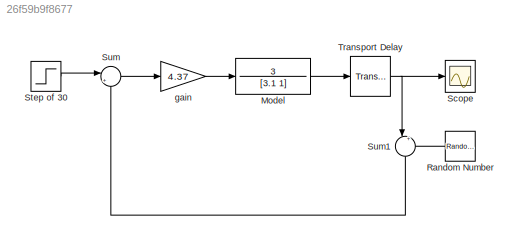
MODEL slx_26f59b9f8677
KIND model
CONFIG AbsTol = auto
CONFIG EnableMultiTasking = off
CONFIG FixedStep = auto
CONFIG MaxStep = auto
CONFIG MinStep = auto
CONFIG RelTol = 1e-3
CONFIG SampleTimeConstraint = Unconstrained
CONFIG SolverName = VariableStepAuto
CONFIG StartTime = 0.0
CONFIG StopTime = 10
BLOCK [TransferFcn] Model
  Denominator = [3.1 1]
  Numerator = 3
BLOCK [RandomNumber] Random Number
  NameLocation = top
  SampleTime = 0
  Seed = 61233
  Variance = .5
BLOCK [Scope] Scope
  Floating = off
  NumInputPorts = 1
  ScopeSpecificationString = Simulink.scopes.TimeScopeBlockCfg('CurrentConfiguration', extmgr.ConfigurationSet(extmgr.Configuration('Core','General UI',true),extmgr.Configuration('Core','Source UI',true),extmgr.Configuration('Sources','WiredSimulink',true,'DataLoggingVariableName','Y','DataLogging',true,'DataLoggingSaveFormat','StructureWithTime'),extmgr.Configuration('Visuals','Time Domain',true,'SerializedDisplays',{struct(...<+1598ch>
BLOCK [Step] Step of 30
  After = 30
  SampleTime = 0
  Time = 0
BLOCK [Sum] Sum
  Inputs = |+-
BLOCK [Sum] Sum1
  Inputs = |++
  NameLocation = left
BLOCK [TransportDelay] Transport Delay
  DelayTime = 0.15/60
BLOCK [Gain] gain
  Gain = 4.37
LINE Model:1 -> Transport Delay:1
LINE Random Number:1 -> Sum1:2
LINE Step of 30:1 -> Sum:1
LINE Sum1:1 -> Sum:2
LINE Sum:1 -> gain:1
NET Transport Delay:1 -> Scope:1, Sum1:1
LINE gain:1 -> Model:1
note: NET lines group one-source signal fan-out (src -> all destinations, sorted); 1:1 wires keep LINE
